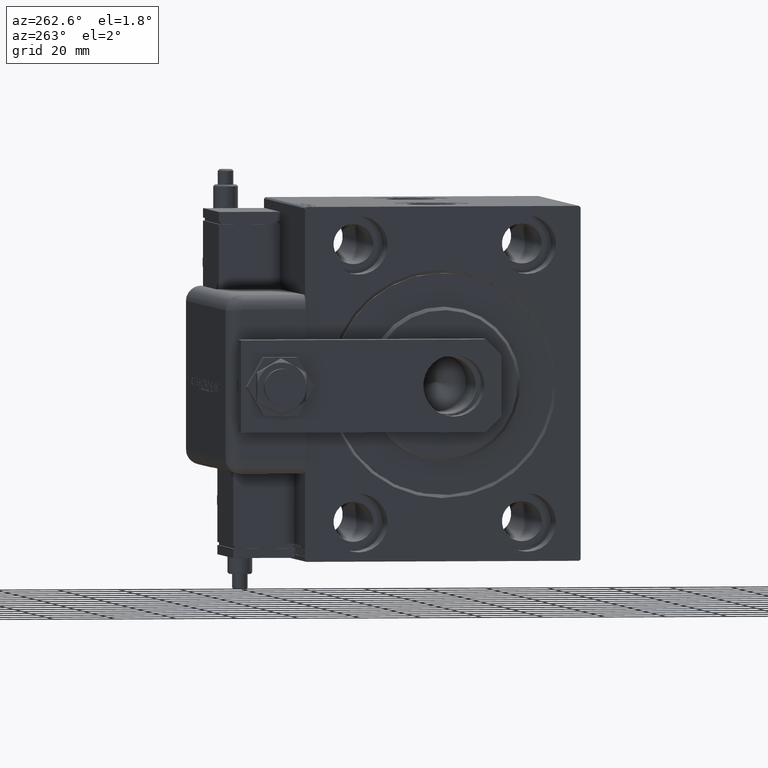
[diagram: clean part render]
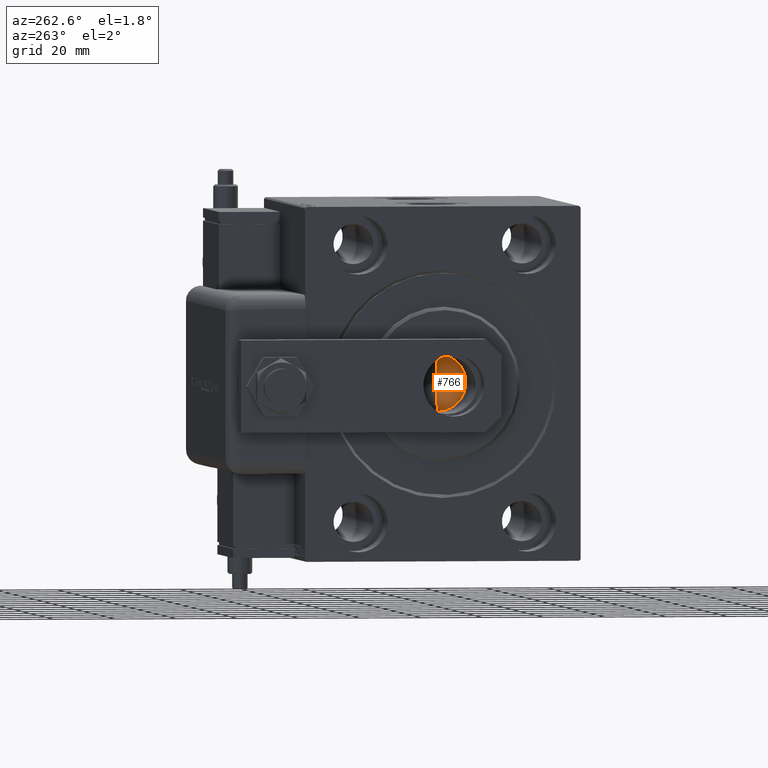
[diagram: same view with one face highlighted and labeled with its STEP entity id]
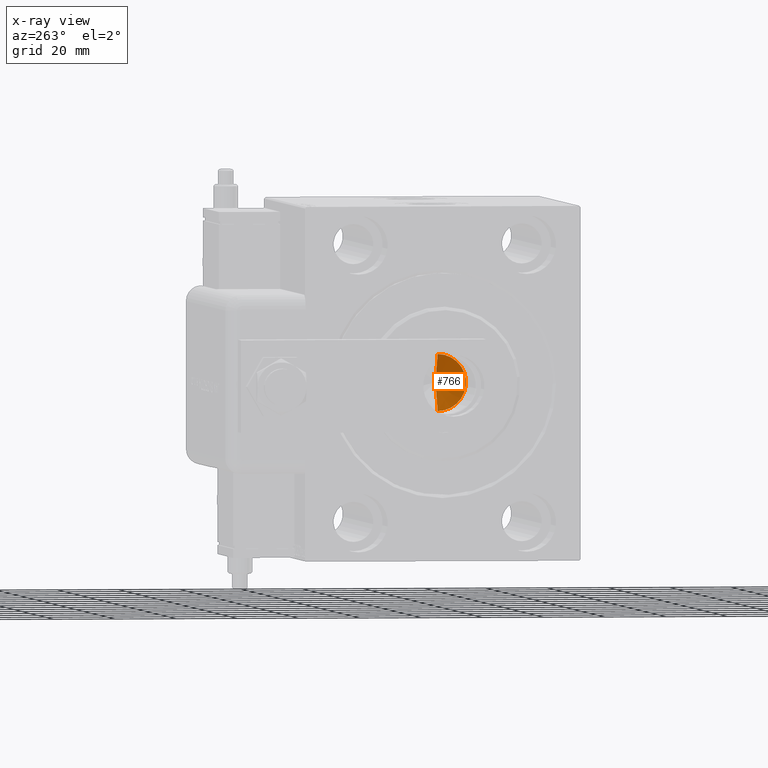
[diagram: x-ray of the same camera — body ghosted, the highlighted face saturated]
A machine part, auxiliary view. The second image highlights one B-rep face of the part: STEP entity #766.
The next image is the same camera in x-ray: the body ghosted, the highlighted face saturated — about 2% of this face is hidden behind the body in this view.
In plain terms, the highlighted conical surface has half-angle 59 deg.
Its self-contained STEP definition (entity closure, byte-faithful):
#766 = ADVANCED_FACE ( 'NONE', ( #30675 ), #8723, .F. ) ;
#2589 = CARTESIAN_POINT ( 'NONE',  ( -9.249999999999994671, 1.132798289211300909E-15, 38.00000000000000000 ) ) ;
#4070 = CIRCLE ( 'NONE', #35759, 9.249999999999994671 ) ;
#5330 = EDGE_LOOP ( 'NONE', ( #26916, #21949, #32112 ) ) ;
#8723 = CONICAL_SURFACE ( 'NONE', #15664, 9.249999999999994671, 1.029744258676653645 ) ;
#9762 = LINE ( 'NONE', #28056, #24345 ) ;
#10674 = DIRECTION ( 'NONE',  ( -0.8571673007021118895, 1.049727191138618079E-16, 0.5150380749100549327 ) ) ;
#12057 = DIRECTION ( 'NONE',  ( 1.000000000000000000, 0.000000000000000000, 0.000000000000000000 ) ) ;
#12366 = EDGE_CURVE ( 'NONE', #50457, #40807, #4070, .T. ) ;
#13958 = CARTESIAN_POINT ( 'NONE',  ( -9.249999999999994671, 1.132798289211300909E-15, 38.00000000000000000 ) ) ;
#15321 = LINE ( 'NONE', #2589, #37750 ) ;
#15664 = AXIS2_PLACEMENT_3D ( 'NONE', #21358, #40286, #12057 ) ;
#21177 = DIRECTION ( 'NONE',  ( -0.000000000000000000, -0.000000000000000000, 1.000000000000000000 ) ) ;
#21358 = CARTESIAN_POINT ( 'NONE',  ( 0.000000000000000000, 0.000000000000000000, 38.00000000000000000 ) ) ;
#21949 = ORIENTED_EDGE ( 'NONE', *, *, #59770, .T. ) ;
#24345 = VECTOR ( 'NONE', #46663, 1000.000000000000000 ) ;
#26001 = VERTEX_POINT ( 'NONE', #59904 ) ;
#26916 = ORIENTED_EDGE ( 'NONE', *, *, #43164, .F. ) ;
#28056 = CARTESIAN_POINT ( 'NONE',  ( 9.249999999999994671, 0.000000000000000000, 38.00000000000000000 ) ) ;
#30675 = FACE_OUTER_BOUND ( 'NONE', #5330, .T. ) ;
#30789 = DIRECTION ( 'NONE',  ( 1.000000000000000000, 0.000000000000000000, 0.000000000000000000 ) ) ;
#32112 = ORIENTED_EDGE ( 'NONE', *, *, #12366, .T. ) ;
#35759 = AXIS2_PLACEMENT_3D ( 'NONE', #59036, #21177, #30789 ) ;
#37750 = VECTOR ( 'NONE', #10674, 1000.000000000000000 ) ;
#40286 = DIRECTION ( 'NONE',  ( -0.000000000000000000, -0.000000000000000000, 1.000000000000000000 ) ) ;
#40807 = VERTEX_POINT ( 'NONE', #45113 ) ;
#43164 = EDGE_CURVE ( 'NONE', #26001, #40807, #9762, .T. ) ;
#45113 = CARTESIAN_POINT ( 'NONE',  ( 9.249999999999994671, 0.000000000000000000, 38.00000000000000000 ) ) ;
#46663 = DIRECTION ( 'NONE',  ( 0.8571673007021118895, 0.000000000000000000, 0.5150380749100549327 ) ) ;
#50457 = VERTEX_POINT ( 'NONE', #13958 ) ;
#59036 = CARTESIAN_POINT ( 'NONE',  ( 0.000000000000000000, 0.000000000000000000, 38.00000000000000000 ) ) ;
#59770 = EDGE_CURVE ( 'NONE', #26001, #50457, #15321, .T. ) ;
#59904 = CARTESIAN_POINT ( 'NONE',  ( -6.793016015247754405E-15, 0.000000000000000000, 32.44203927399506426 ) ) ;